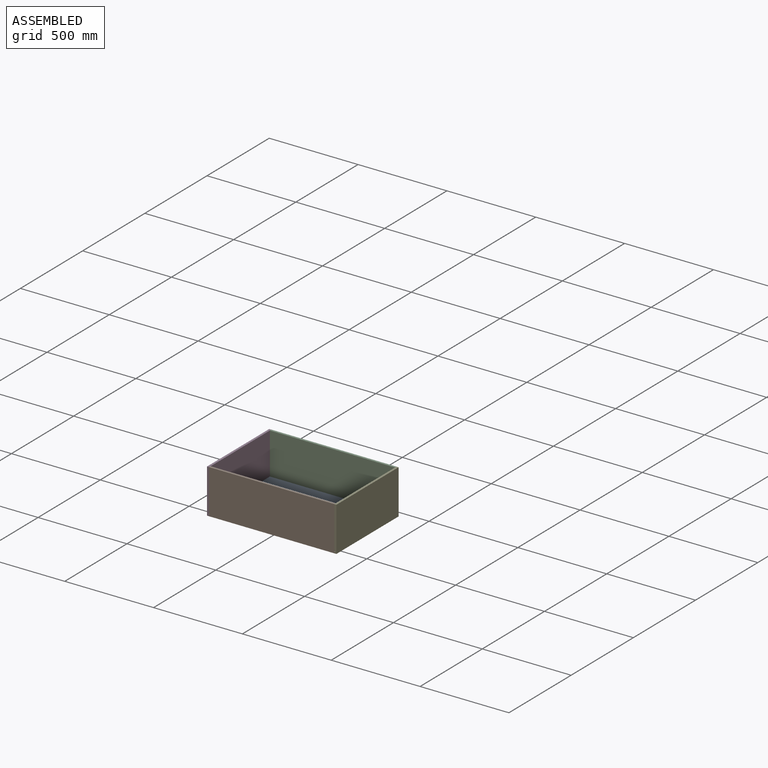
[diagram: assembled view]
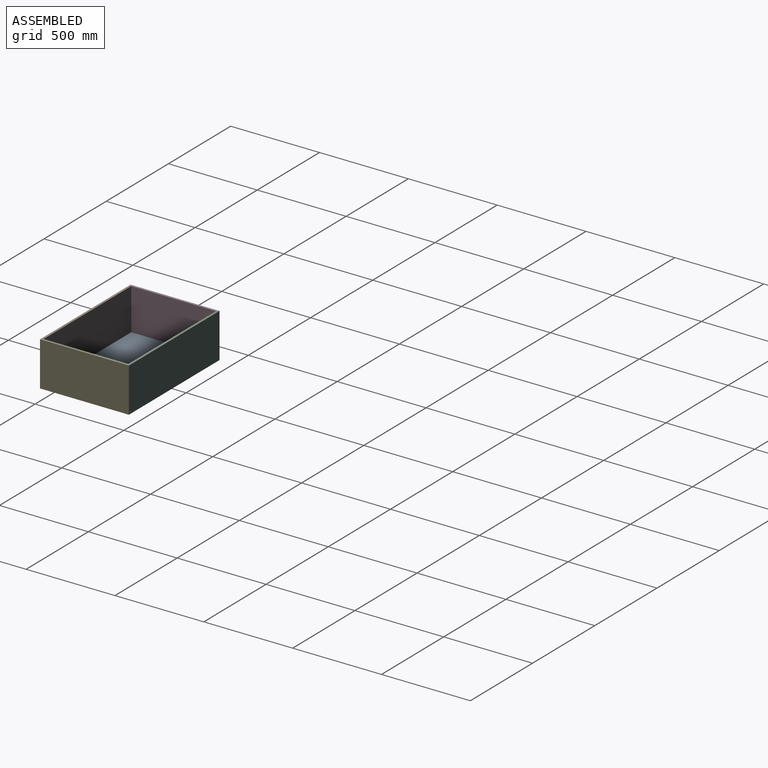
[diagram: assembled view, second angle]
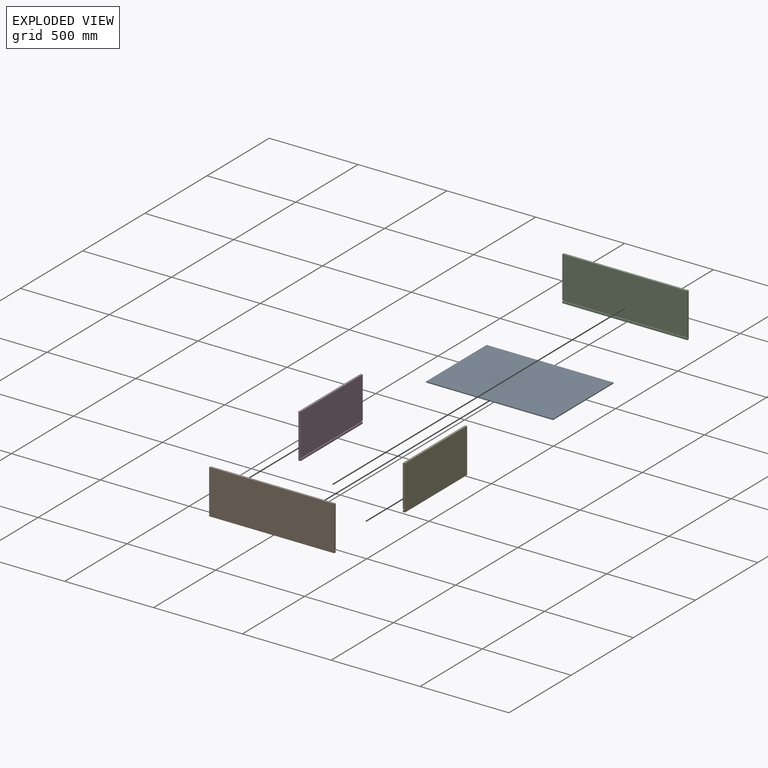
[diagram: exploded view]
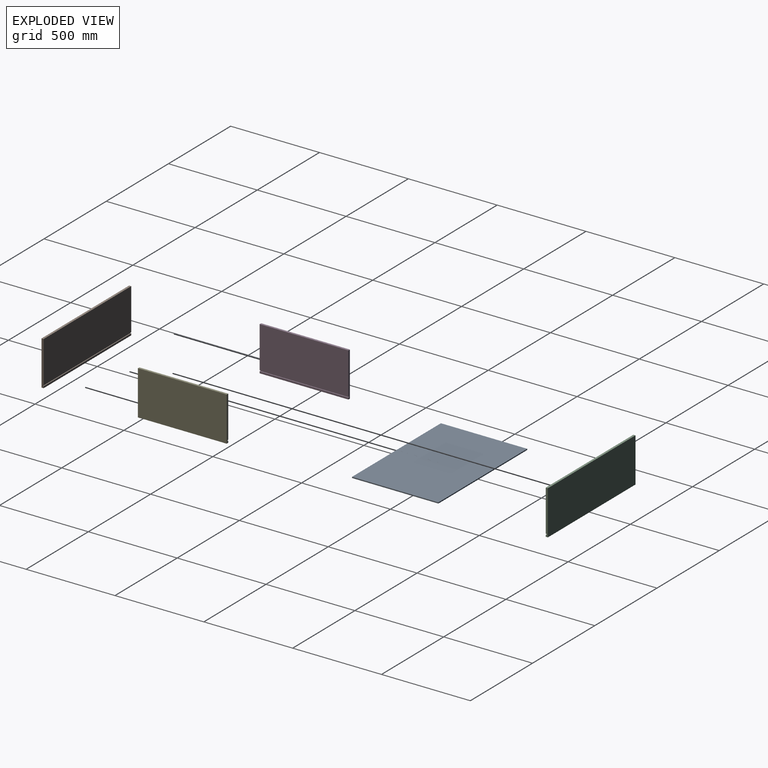
[diagram: exploded view, second angle]
ASSEMBLY  parts=5 mates=12
PART A: 6 faces, bbox 714x486x6 mm
  f0: plane 714x6mm, normal (0,1,0), area 4284mm2, adj f1,f3,f4,f5
  f1: plane 486x6mm, normal (-1,0,0), area 2916mm2, adj f0,f2,f4,f5
  f2: plane 714x6mm, normal (0,-1,0), area 4284mm2, adj f1,f3,f4,f5
  f3: plane 486x6mm, normal (1,0,0), area 2916mm2, adj f0,f2,f4,f5
  f4: plane 714x486mm, normal (0,0,1), area 347004mm2, adj f0,f1,f2,f3
  f5: plane 714x486mm, normal (0,0,-1), area 347004mm2, adj f0,f1,f2,f3
PART B: 10 faces, bbox 704x12x250 mm
  f0: plane 704x234mm, normal (0,-1,0), area 164736mm2, adj f1,f3,f4,f8
  f1: plane 250x12mm, normal (-1,0,0), area 2970mm2, adj f0,f2,f4,f5,f6,f7,f8,f9
  f2: plane 704x12mm, normal (0,0,-1), area 8448mm2, adj f1,f3,f5,f6
  f3: plane 250x12mm, normal (1,0,0), area 2970mm2, adj f0,f2,f4,f5,f6,f7,f8,f9
  f4: plane 704x12mm, normal (0,0,1), area 8448mm2, adj f0,f1,f3,f6
  f5: plane 704x10mm, normal (0,-1,0), area 7040mm2, adj f1,f2,f3,f7
  f6: plane 704x250mm, normal (0,1,0), area 176000mm2, adj f1,f2,f3,f4
  f7: plane 704x5mm, normal (0,0,1), area 3520mm2, adj f1,f3,f5,f9
  f8: plane 704x5mm, normal (0,0,-1), area 3520mm2, adj f0,f1,f3,f9
  f9: plane 704x6mm, normal (0,-1,0), area 4224mm2, adj f1,f3,f7,f8
PART C: same geometry as B
PART D: 10 faces, bbox 12x500x250 mm
  f0: plane 500x234mm, normal (1,0,0), area 117000mm2, adj f1,f3,f4,f7
  f1: plane 250x12mm, normal (0,-1,0), area 2970mm2, adj f0,f2,f4,f5,f6,f7,f8,f9
  f2: plane 500x12mm, normal (0,0,-1), area 6000mm2, adj f1,f3,f5,f6
  f3: plane 250x12mm, normal (0,1,0), area 2970mm2, adj f0,f2,f4,f5,f6,f7,f8,f9
  f4: plane 500x12mm, normal (0,0,1), area 6000mm2, adj f0,f1,f3,f6
  f5: plane 500x10mm, normal (1,0,0), area 5000mm2, adj f1,f2,f3,f8
  f6: plane 500x250mm, normal (-1,0,0), area 125000mm2, adj f1,f2,f3,f4
  f7: plane 500x5mm, normal (0,0,-1), area 2500mm2, adj f0,f1,f3,f9
  f8: plane 500x5mm, normal (0,0,1), area 2500mm2, adj f1,f3,f5,f9
  f9: plane 500x6mm, normal (1,0,0), area 3000mm2, adj f1,f3,f7,f8
PART E: same geometry as D
PLACE A t=(-6633.23,-9818.35,3633.05)mm
PLACE B rot(axis=(0,0,1),180deg) t=(11993.64,-14561.51,4566)mm
PLACE C rot(axis=(1,0,0),0deg) t=(-11977.71,-14061.51,4566)mm
PLACE D rot(axis=(1,0,0),0deg) t=(-356.04,0,53.04)mm
PLACE E rot(axis=(0,0,-1),180deg) t=(371.96,-28623.02,53.04)mm
MATE planar B.f6 <-> E.f3  axis (0,-1,0) through (7.96,-14561.51,3748.05)mm
MATE planar B.f4 <-> E.f4  axis (0,0,1) through (359.96,-14549.51,3873.05)mm
MATE planar B.f6 <-> D.f1  axis (0,-1,0) through (7.96,-14561.51,3748.05)mm
MATE planar C.f1 <-> D.f0  axis (-1,0,0) through (-344.04,-14067.48,3749.18)mm
MATE planar A.f2 <-> B.f9  axis (0,-1,0) through (7.96,-14554.51,3636.05)mm
MATE planar A.f5 <-> B.f7  axis (0,0,-1) through (7.96,-14311.51,3633.05)mm
MATE planar B.f3 <-> D.f0  axis (-1,0,0) through (-344.04,-14555.55,3749.18)mm
MATE planar C.f4 <-> D.f4  axis (0,0,1) through (-344.04,-14061.51,3873.05)mm
MATE planar B.f1 <-> E.f0  axis (1,0,0) through (359.96,-14555.55,3749.18)mm
MATE planar D.f4 <-> B.f4  axis (0,0,1) through (-350.04,-14311.51,3873.05)mm
MATE planar C.f6 <-> D.f3  axis (0,1,0) through (7.96,-14061.51,3748.05)mm
MATE planar A.f3 <-> E.f9  axis (1,0,0) through (364.96,-14311.51,3636.05)mm
